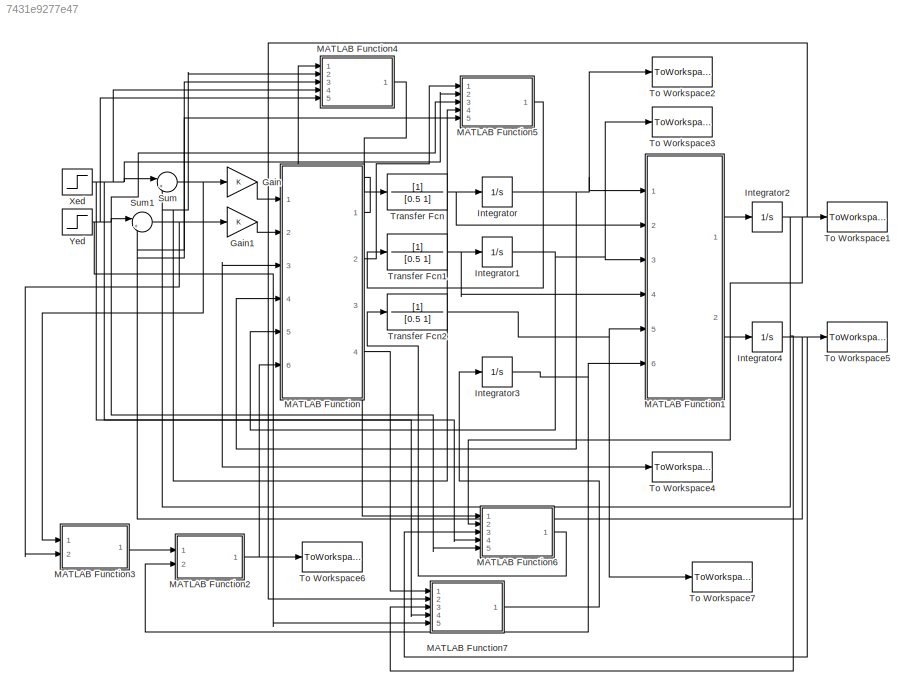
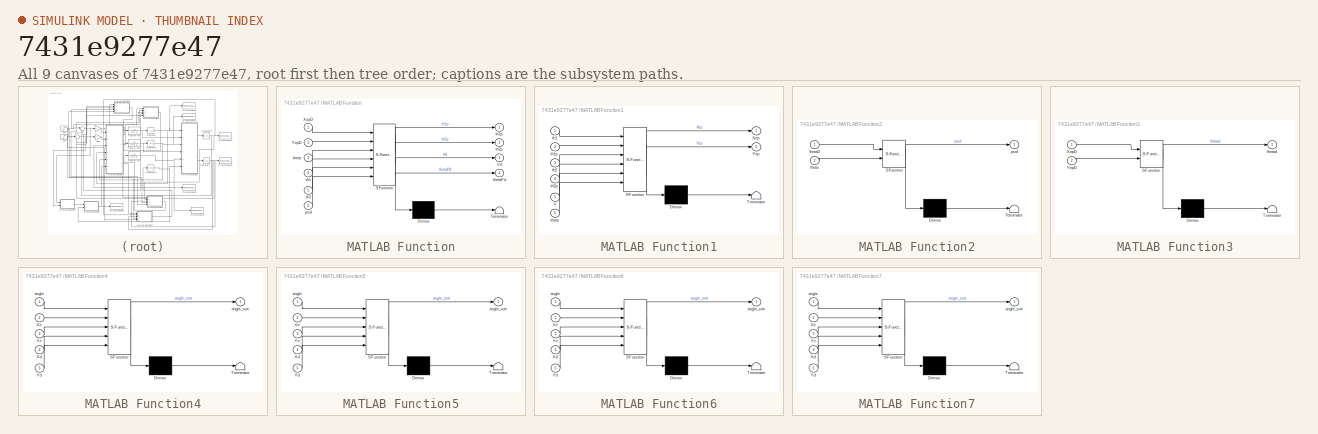
[diagram: thumbnail index - all 9 canvases of the model, root first then tree order]
MODEL slx_7431e9277e47
KIND model
CONFIG AbsTol = auto
CONFIG EnableMultiTasking = on
CONFIG FixedStep = auto
CONFIG MaxStep = auto
CONFIG MinStep = auto
CONFIG RelTol = 1e-3
CONFIG SampleTimeConstraint = Unconstrained
CONFIG Solver = VariableStepAuto
CONFIG SolverName = VariableStepAuto
CONFIG StartTime = 0.0
CONFIG StopTime = 10
BLOCK [Gain] Gain
  OutDataTypeStr = Inherit: Inherit via internal rule
  ParamDataTypeStr = Inherit: Inherit via internal rule
  SaturateOnIntegerOverflow = off
BLOCK [Gain] Gain1
  OutDataTypeStr = Inherit: Inherit via internal rule
  ParamDataTypeStr = Inherit: Inherit via internal rule
  SaturateOnIntegerOverflow = off
BLOCK [Integrator] Integrator
  InitialCondition = th1_0
  Ports = [1, 1]
BLOCK [Integrator] Integrator1
  InitialCondition = th2_0
  Ports = [1, 1]
BLOCK [Integrator] Integrator2
  InitialCondition = Xe0
  Ports = [1, 1]
BLOCK [Integrator] Integrator3
  InitialCondition = theta_0
  Ports = [1, 1]
BLOCK [Integrator] Integrator4
  InitialCondition = Ye0
  Ports = [1, 1]
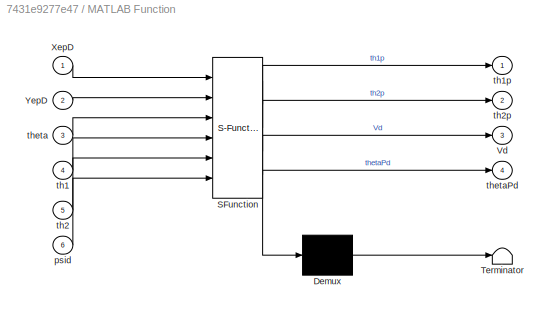
BLOCK [SubSystem] MATLAB Function
  ErrorFcn = Stateflow.Translate.translate
  PermitHierarchicalResolution = ExplicitOnly
  Ports = [6, 4]
  RequestExecContextInheritance = off
  SFBlockType = MATLAB Function
  TreatAsAtomicUnit = on
  Variant = off
BLOCK [Demux] MATLAB Function/ Demux 
  Outputs = 1
  Ports = [1, 1]
BLOCK [S-Function] MATLAB Function/ SFunction 
  EnableBusSupport = on
  FunctionName = sf_sfun
  PortCounts = [6 5]
  Ports = [6, 5]
  SFcnIsStateOwnerBlock = off
  SFunctionDeploymentMode = off
  Tag = Stateflow S-Function Copy_of_simu 2
BLOCK [Terminator] MATLAB Function/ Terminator 
BLOCK [Outport] MATLAB Function/Vd
  IconDisplay = Port number
  Port = 3
BLOCK [Inport] MATLAB Function/XepD
  IconDisplay = Port number
BLOCK [Inport] MATLAB Function/YepD
  IconDisplay = Port number
  Port = 2
BLOCK [Inport] MATLAB Function/psid
  IconDisplay = Port number
  Port = 6
BLOCK [Inport] MATLAB Function/th1
  IconDisplay = Port number
  Port = 4
BLOCK [Outport] MATLAB Function/th1p
  IconDisplay = Port number
BLOCK [Inport] MATLAB Function/th2
  IconDisplay = Port number
  Port = 5
BLOCK [Outport] MATLAB Function/th2p
  IconDisplay = Port number
  Port = 2
BLOCK [Inport] MATLAB Function/theta
  IconDisplay = Port number
  Port = 3
BLOCK [Outport] MATLAB Function/thetaPd
  IconDisplay = Port number
  Port = 4
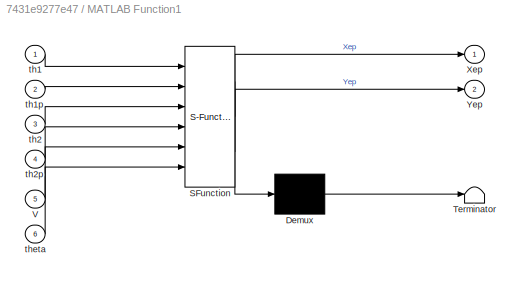
BLOCK [SubSystem] MATLAB Function1
  ErrorFcn = Stateflow.Translate.translate
  PermitHierarchicalResolution = ExplicitOnly
  Ports = [6, 2]
  RequestExecContextInheritance = off
  SFBlockType = MATLAB Function
  TreatAsAtomicUnit = on
  Variant = off
BLOCK [Demux] MATLAB Function1/ Demux 
  Outputs = 1
  Ports = [1, 1]
BLOCK [S-Function] MATLAB Function1/ SFunction 
  EnableBusSupport = on
  FunctionName = sf_sfun
  PortCounts = [6 3]
  Ports = [6, 3]
  SFcnIsStateOwnerBlock = off
  SFunctionDeploymentMode = off
  Tag = Stateflow S-Function Copy_of_simu 1
BLOCK [Terminator] MATLAB Function1/ Terminator 
BLOCK [Inport] MATLAB Function1/V
  IconDisplay = Port number
  Port = 5
BLOCK [Outport] MATLAB Function1/Xep
  IconDisplay = Port number
BLOCK [Outport] MATLAB Function1/Yep
  IconDisplay = Port number
  Port = 2
BLOCK [Inport] MATLAB Function1/th1
  IconDisplay = Port number
BLOCK [Inport] MATLAB Function1/th1p
  IconDisplay = Port number
  Port = 2
BLOCK [Inport] MATLAB Function1/th2
  IconDisplay = Port number
  Port = 3
BLOCK [Inport] MATLAB Function1/th2p
  IconDisplay = Port number
  Port = 4
BLOCK [Inport] MATLAB Function1/theta
  IconDisplay = Port number
  Port = 6
BLOCK [SubSystem] MATLAB Function2
  ErrorFcn = Stateflow.Translate.translate
  PermitHierarchicalResolution = ExplicitOnly
  Ports = [2, 1]
  RequestExecContextInheritance = off
  SFBlockType = MATLAB Function
  TreatAsAtomicUnit = on
  Variant = off
BLOCK [Demux] MATLAB Function2/ Demux 
  Outputs = 1
  Ports = [1, 1]
BLOCK [S-Function] MATLAB Function2/ SFunction 
  EnableBusSupport = on
  FunctionName = sf_sfun
  PortCounts = [2 2]
  Ports = [2, 2]
  SFcnIsStateOwnerBlock = off
  SFunctionDeploymentMode = off
  Tag = Stateflow S-Function Copy_of_simu 3
BLOCK [Terminator] MATLAB Function2/ Terminator 
BLOCK [Outport] MATLAB Function2/psid
  IconDisplay = Port number
BLOCK [Inport] MATLAB Function2/theta
  IconDisplay = Port number
  Port = 2
BLOCK [Inport] MATLAB Function2/thetaD
  IconDisplay = Port number
BLOCK [SubSystem] MATLAB Function3
  ErrorFcn = Stateflow.Translate.translate
  PermitHierarchicalResolution = ExplicitOnly
  Ports = [2, 1]
  RequestExecContextInheritance = off
  SFBlockType = MATLAB Function
  TreatAsAtomicUnit = on
  Variant = off
BLOCK [Demux] MATLAB Function3/ Demux 
  Outputs = 1
  Ports = [1, 1]
BLOCK [S-Function] MATLAB Function3/ SFunction 
  EnableBusSupport = on
  FunctionName = sf_sfun
  PortCounts = [2 2]
  Ports = [2, 2]
  SFcnIsStateOwnerBlock = off
  SFunctionDeploymentMode = off
  Tag = Stateflow S-Function Copy_of_simu 4
BLOCK [Terminator] MATLAB Function3/ Terminator 
BLOCK [Inport] MATLAB Function3/XepD
  IconDisplay = Port number
BLOCK [Inport] MATLAB Function3/YepD
  IconDisplay = Port number
  Port = 2
BLOCK [Outport] MATLAB Function3/thetad
  IconDisplay = Port number
BLOCK [SubSystem] MATLAB Function4
  ErrorFcn = Stateflow.Translate.translate
  PermitHierarchicalResolution = ExplicitOnly
  Ports = [5, 1]
  RequestExecContextInheritance = off
  SFBlockType = MATLAB Function
  TreatAsAtomicUnit = on
  Variant = off
BLOCK [Demux] MATLAB Function4/ Demux 
  Outputs = 1
  Ports = [1, 1]
BLOCK [S-Function] MATLAB Function4/ SFunction 
  EnableBusSupport = on
  FunctionName = sf_sfun
  PortCounts = [5 2]
  Ports = [5, 2]
  SFcnIsStateOwnerBlock = off
  SFunctionDeploymentMode = off
  Tag = Stateflow S-Function Copy_of_simu 5
BLOCK [Terminator] MATLAB Function4/ Terminator 
BLOCK [Inport] MATLAB Function4/Xd
  IconDisplay = Port number
  Port = 4
BLOCK [Inport] MATLAB Function4/Xe
  IconDisplay = Port number
  Port = 2
BLOCK [Inport] MATLAB Function4/Yd
  IconDisplay = Port number
  Port = 5
BLOCK [Inport] MATLAB Function4/Ye
  IconDisplay = Port number
  Port = 3
BLOCK [Inport] MATLAB Function4/angle
  IconDisplay = Port number
BLOCK [Outport] MATLAB Function4/angle_sort
  IconDisplay = Port number
BLOCK [SubSystem] MATLAB Function5
  ErrorFcn = Stateflow.Translate.translate
  PermitHierarchicalResolution = ExplicitOnly
  Ports = [5, 1]
  RequestExecContextInheritance = off
  SFBlockType = MATLAB Function
  TreatAsAtomicUnit = on
  Variant = off
BLOCK [Demux] MATLAB Function5/ Demux 
  Outputs = 1
  Ports = [1, 1]
BLOCK [S-Function] MATLAB Function5/ SFunction 
  EnableBusSupport = on
  FunctionName = sf_sfun
  PortCounts = [5 2]
  Ports = [5, 2]
  SFcnIsStateOwnerBlock = off
  SFunctionDeploymentMode = off
  Tag = Stateflow S-Function Copy_of_simu 6
BLOCK [Terminator] MATLAB Function5/ Terminator 
BLOCK [Inport] MATLAB Function5/Xd
  IconDisplay = Port number
  Port = 4
BLOCK [Inport] MATLAB Function5/Xe
  IconDisplay = Port number
  Port = 2
BLOCK [Inport] MATLAB Function5/Yd
  IconDisplay = Port number
  Port = 5
BLOCK [Inport] MATLAB Function5/Ye
  IconDisplay = Port number
  Port = 3
BLOCK [Inport] MATLAB Function5/angle
  IconDisplay = Port number
BLOCK [Outport] MATLAB Function5/angle_sort
  IconDisplay = Port number
BLOCK [SubSystem] MATLAB Function6
  ErrorFcn = Stateflow.Translate.translate
  PermitHierarchicalResolution = ExplicitOnly
  Ports = [5, 1]
  RequestExecContextInheritance = off
  SFBlockType = MATLAB Function
  TreatAsAtomicUnit = on
  Variant = off
BLOCK [Demux] MATLAB Function6/ Demux 
  Outputs = 1
  Ports = [1, 1]
BLOCK [S-Function] MATLAB Function6/ SFunction 
  EnableBusSupport = on
  FunctionName = sf_sfun
  PortCounts = [5 2]
  Ports = [5, 2]
  SFcnIsStateOwnerBlock = off
  SFunctionDeploymentMode = off
  Tag = Stateflow S-Function Copy_of_simu 7
BLOCK [Terminator] MATLAB Function6/ Terminator 
BLOCK [Inport] MATLAB Function6/Xd
  IconDisplay = Port number
  Port = 4
BLOCK [Inport] MATLAB Function6/Xe
  IconDisplay = Port number
  Port = 2
BLOCK [Inport] MATLAB Function6/Yd
  IconDisplay = Port number
  Port = 5
BLOCK [Inport] MATLAB Function6/Ye
  IconDisplay = Port number
  Port = 3
BLOCK [Inport] MATLAB Function6/angle
  IconDisplay = Port number
BLOCK [Outport] MATLAB Function6/angle_sort
  IconDisplay = Port number
BLOCK [SubSystem] MATLAB Function7
  ErrorFcn = Stateflow.Translate.translate
  PermitHierarchicalResolution = ExplicitOnly
  Ports = [5, 1]
  RequestExecContextInheritance = off
  SFBlockType = MATLAB Function
  TreatAsAtomicUnit = on
  Variant = off
BLOCK [Demux] MATLAB Function7/ Demux 
  Outputs = 1
  Ports = [1, 1]
BLOCK [S-Function] MATLAB Function7/ SFunction 
  EnableBusSupport = on
  FunctionName = sf_sfun
  PortCounts = [5 2]
  Ports = [5, 2]
  SFcnIsStateOwnerBlock = off
  SFunctionDeploymentMode = off
  Tag = Stateflow S-Function Copy_of_simu 8
BLOCK [Terminator] MATLAB Function7/ Terminator 
BLOCK [Inport] MATLAB Function7/Xd
  IconDisplay = Port number
  Port = 4
BLOCK [Inport] MATLAB Function7/Xe
  IconDisplay = Port number
  Port = 2
BLOCK [Inport] MATLAB Function7/Yd
  IconDisplay = Port number
  Port = 5
BLOCK [Inport] MATLAB Function7/Ye
  IconDisplay = Port number
  Port = 3
BLOCK [Inport] MATLAB Function7/angle
  IconDisplay = Port number
BLOCK [Outport] MATLAB Function7/angle_sort
  IconDisplay = Port number
BLOCK [Sum] Sum
  IconShape = round
  InputSameDT = off
  Inputs = |+-
  OutDataTypeStr = Inherit: Inherit via internal rule
  Ports = [2, 1]
  SaturateOnIntegerOverflow = off
BLOCK [Sum] Sum1
  IconShape = round
  InputSameDT = off
  Inputs = |+-
  OutDataTypeStr = Inherit: Inherit via internal rule
  Ports = [2, 1]
  SaturateOnIntegerOverflow = off
BLOCK [ToWorkspace] To Workspace1
  FixptAsFi = on
  MaxDataPoints = inf
  Ports = [1]
  SampleTime = -1
  Save2DSignal = 3-D array (concatenate along third dimension)
  VariableName = Xe
BLOCK [ToWorkspace] To Workspace2
  FixptAsFi = on
  MaxDataPoints = inf
  Ports = [1]
  SampleTime = -1
  Save2DSignal = 3-D array (concatenate along third dimension)
  VariableName = th1
BLOCK [ToWorkspace] To Workspace3
  FixptAsFi = on
  MaxDataPoints = inf
  Ports = [1]
  SampleTime = -1
  Save2DSignal = 3-D array (concatenate along third dimension)
  VariableName = th2
BLOCK [ToWorkspace] To Workspace4
  FixptAsFi = on
  MaxDataPoints = inf
  Ports = [1]
  SampleTime = -1
  Save2DSignal = 3-D array (concatenate along third dimension)
  VariableName = theta
BLOCK [ToWorkspace] To Workspace5
  FixptAsFi = on
  MaxDataPoints = inf
  Ports = [1]
  SampleTime = -1
  Save2DSignal = 3-D array (concatenate along third dimension)
  VariableName = Ye
BLOCK [ToWorkspace] To Workspace6
  FixptAsFi = on
  MaxDataPoints = inf
  Ports = [1]
  SampleTime = -1
  Save2DSignal = 3-D array (concatenate along third dimension)
  VariableName = psi
BLOCK [ToWorkspace] To Workspace7
  FixptAsFi = on
  MaxDataPoints = inf
  Ports = [1]
  SampleTime = -1
  Save2DSignal = 3-D array (concatenate along third dimension)
  VariableName = V
BLOCK [TransferFcn] Transfer Fcn
  Denominator = [0.5 1]
BLOCK [TransferFcn] Transfer Fcn1
  Denominator = [0.5 1]
BLOCK [TransferFcn] Transfer Fcn2
  Denominator = [0.5 1]
BLOCK [Step] Xed 
  After = Xd
  Before = Xd
  SampleTime = 0
BLOCK [Step] Yed 
  After = Yd
  Before = Yd
  SampleTime = 0
LINE Gain1:1 -> MATLAB Function:2
LINE Gain:1 -> MATLAB Function:1
NET Integrator1:1 -> MATLAB Function1:3, MATLAB Function:5, To Workspace3:1
NET Integrator2:1 -> MATLAB Function4:2, MATLAB Function5:4, MATLAB Function6:2, MATLAB Function7:2, MATLAB Function7:3, Sum:2, To Workspace1:1
NET Integrator3:1 -> MATLAB Function1:6, MATLAB Function2:2, MATLAB Function:3, To Workspace4:1
NET Integrator4:1 -> MATLAB Function4:3, MATLAB Function5:5, MATLAB Function6:3, Sum1:2, To Workspace5:1
NET Integrator:1 -> MATLAB Function1:1, MATLAB Function:4, To Workspace2:1
LINE MATLAB Function1:1 -> Integrator2:1
LINE MATLAB Function1:2 -> Integrator4:1
NET MATLAB Function2:1 -> MATLAB Function:6, To Workspace6:1
LINE MATLAB Function3:1 -> MATLAB Function2:1
LINE MATLAB Function4:1 -> Transfer Fcn:1
LINE MATLAB Function5:1 -> Transfer Fcn1:1
LINE MATLAB Function6:1 -> Transfer Fcn2:1
LINE MATLAB Function7:1 -> Integrator3:1
LINE MATLAB Function:1 -> MATLAB Function4:1
LINE MATLAB Function:2 -> MATLAB Function5:1
LINE MATLAB Function:3 -> MATLAB Function6:1
LINE MATLAB Function:4 -> MATLAB Function7:1
NET Sum1:1 -> Gain1:1, MATLAB Function3:2
NET Sum:1 -> Gain:1, MATLAB Function3:1
NET Transfer Fcn1:1 -> Integrator1:1, MATLAB Function1:4
NET Transfer Fcn2:1 -> MATLAB Function1:5, To Workspace7:1
NET Transfer Fcn:1 -> Integrator:1, MATLAB Function1:2
NET Xed :1 -> MATLAB Function4:4, MATLAB Function5:2, MATLAB Function6:4, MATLAB Function7:4, Sum:1
NET Yed :1 -> MATLAB Function4:5, MATLAB Function5:3, MATLAB Function6:5, MATLAB Function7:5, Sum1:1
note: NET lines group one-source signal fan-out (src -> all destinations, sorted); 1:1 wires keep LINE
CHART MATLAB Function1 states=1 transitions=1
  STATE_LABEL 'eML_blk_kernel()'
  STATE_LABEL 'SCRIPT:\nfunction [Xep,Yep] = vehicule(th1, th1p,th2,th2p,V,theta)\n\nl1 = 0.8;\nl2 = 0.55;\n\nXep = (-l1*sin(theta+th1)-l2*sin(theta+th1+th2))*th1p + (-l2*sin(theta+th1+th2))*th2p + V*cos(theta);\nYep = (l1*cos(theta+th1)+l2*cos(theta+th1+th2))*th1p + (l2*cos(theta+th1+th2))*th2p + V*sin(theta);\n\nend'
CHART MATLAB Function states=1 transitions=1
  STATE_LABEL 'eML_blk_kernel()'
  STATE_LABEL 'SCRIPT:\nfunction [th1p,th2p,Vd,thetaPd] = controle(XepD,YepD,theta,th1,th2,psid)\n\nD = 1;\nl1 = 0.8;\nl2 = 0.55;\n\nVd = sqrt(XepD^2+YepD^2);\nthetaPd = Vd*tan(psid)/D;\n\nA = [-l1*sin(theta+th1)-l2*sin(theta+th1+th2) -l2*sin(theta+th1+th2) cos(theta)\n    l1*cos(theta+th1)+l2*cos(theta+th1+th2) l2*cos(theta+th1+th2) sin(theta)\n    0 0 tan(psid)/D];\n\nres = inv(A)*[XepD;YepD;thetaPd];\nth1p = res(1); th2p = ...<+11ch>'
CHART MATLAB Function2 states=1 transitions=1
  STATE_LABEL 'eML_blk_kernel()'
  STATE_LABEL 'SCRIPT:\nfunction psid = anglediff(thetaD,theta)\n\nu = thetaD; v = theta;\n\nif u<-pi\n    u = mod(u,-pi);\nend\nif u>pi\n    u = mod(u,pi);\nend\nif v<-pi\n    v = mod(v,-pi);\nend\nif v>pi\n    v = mod(v,pi);\nend\ny = u-v;\nif y<-pi\n    y = mod(y,-pi);\nend\nif y>pi\n    y = mod(y,pi);\nend\n\npsid = y;\n\nend'
CHART MATLAB Function3 states=1 transitions=1
  STATE_LABEL 'eML_blk_kernel()'
  STATE_LABEL 'SCRIPT:\nfunction thetad = fcn(XepD,YepD)\n\nthetad = atan(YepD/XepD);\n%thetad = atan2(YepD,XepD);\n\nend'
CHART MATLAB Function4 states=1 transitions=1
  STATE_LABEL 'eML_blk_kernel()'
  STATE_LABEL 'SCRIPT:\nfunction angle_sort = fcn(angle,Xe,Ye,Xd,Yd)\n\nl1 = 0.8;\nl2 = 0.55;\ndist = (Xe-Xd)^2+(Ye-Yd)^2;\nif dist > l1^2+l2^2\n    angle_sort = 0;\nelse\n    angle_sort = angle;\n\nend'
CHART MATLAB Function5 states=1 transitions=1
  STATE_LABEL 'eML_blk_kernel()'
  STATE_LABEL 'SCRIPT:\nfunction angle_sort = fcn(angle,Xe,Ye,Xd,Yd)\n\nl1 = 0.8;\nl2 = 0.55;\ndist = (Xe-Xd)^2+(Ye-Yd)^2;\nif dist > l1^2+l2^2\n    angle_sort = 0;\nelse\n    angle_sort = angle;\n\nend'
CHART MATLAB Function6 states=1 transitions=1
  STATE_LABEL 'eML_blk_kernel()'
  STATE_LABEL 'SCRIPT:\nfunction angle_sort = fcn(angle,Xe,Ye,Xd,Yd)\n\nl1 = 0.8;\nl2 = 0.55;\ndist = (Xe-Xd)^2+(Ye-Yd)^2;\nif dist < l1^2+l2^2\n    angle_sort = angle/10;\nelse\n    angle_sort = angle;\n\nend'
CHART MATLAB Function7 states=1 transitions=1
  STATE_LABEL 'eML_blk_kernel()'
  STATE_LABEL 'SCRIPT:\nfunction angle_sort = fcn(angle,Xe,Ye,Xd,Yd)\n\nl1 = 0.8;\nl2 = 0.55;\ndist = (Xe-Xd)^2+(Ye-Yd)^2;\nif dist < l1^2+l2^2\n    angle_sort = angle/10;\nelse\n    angle_sort = angle;\n\nend'
